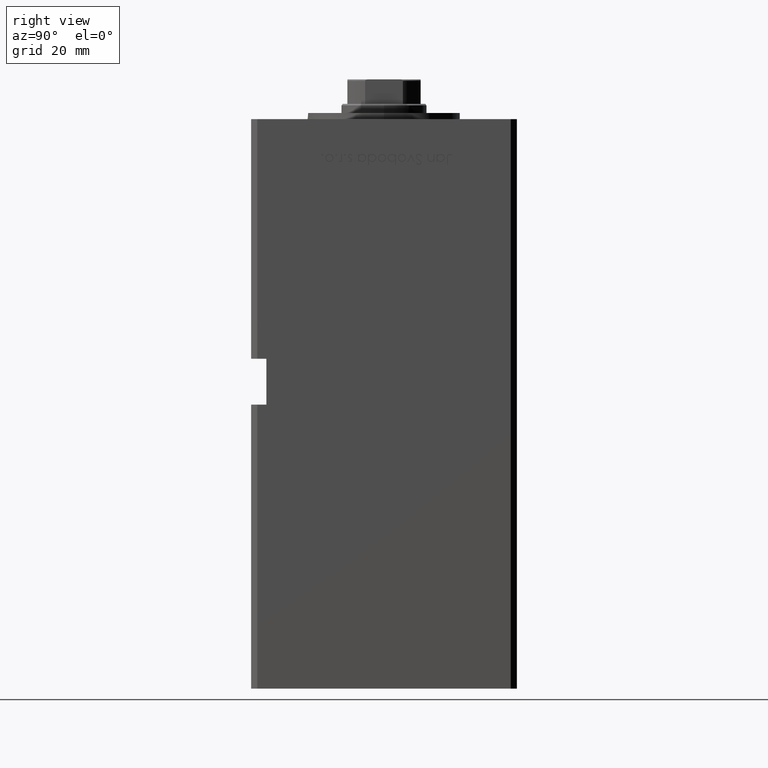
[diagram: clean part render]
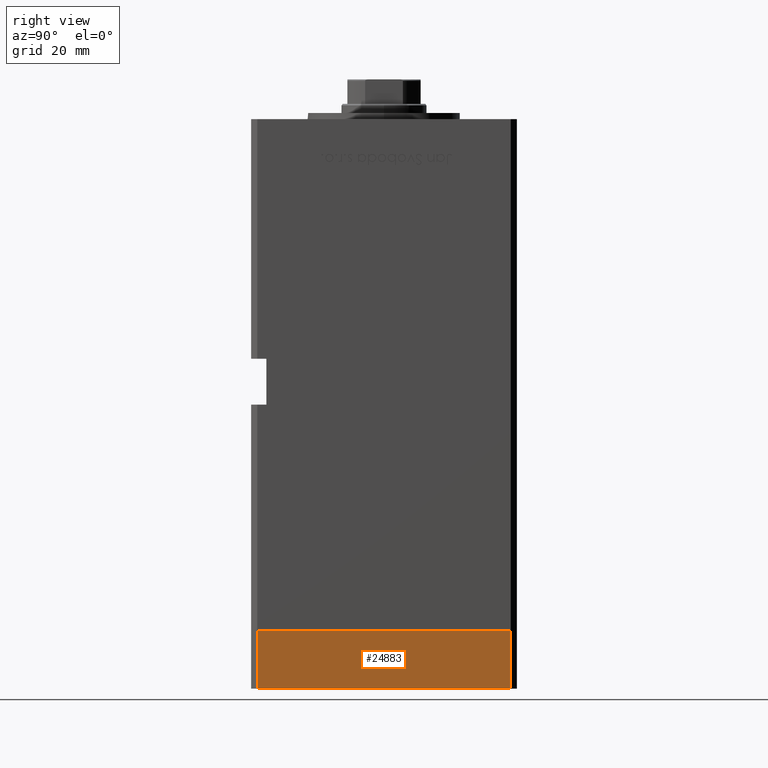
[diagram: same view with one face highlighted and labeled with its STEP entity id]
A machine part, right view. The second image highlights one B-rep face of the part: STEP entity #24883.
In plain terms, the highlighted planar face has unit normal (1, 0, 0).
Its self-contained STEP definition (entity closure, byte-faithful):
#6614 = VECTOR ( 'NONE', #24897, 1000.000000000000000 ) ;
#7896 = CARTESIAN_POINT ( 'NONE',  ( -50.00000000000000711, 41.49999999999995026, -19.00000000000000000 ) ) ;
#9669 = ORIENTED_EDGE ( 'NONE', *, *, #13720, .F. ) ;
#9998 = DIRECTION ( 'NONE',  ( 8.360113137237628665E-17, -1.000000000000000000, 0.000000000000000000 ) ) ;
#10535 = PLANE ( 'NONE',  #20069 ) ;
#11720 = CARTESIAN_POINT ( 'NONE',  ( -50.00000000000000711, 41.49999999999995026, -19.00000000000000000 ) ) ;
#12928 = EDGE_CURVE ( 'NONE', #14904, #48038, #29696, .T. ) ;
#13720 = EDGE_CURVE ( 'NONE', #38157, #26478, #34942, .T. ) ;
#13822 = CARTESIAN_POINT ( 'NONE',  ( -50.00000000000000000, -41.50000000000000000, -19.00000000000000000 ) ) ;
#14904 = VERTEX_POINT ( 'NONE', #13822 ) ;
#15042 = DIRECTION ( 'NONE',  ( 0.000000000000000000, 0.000000000000000000, 1.000000000000000000 ) ) ;
#18588 = FACE_OUTER_BOUND ( 'NONE', #20034, .T. ) ;
#19781 = CARTESIAN_POINT ( 'NONE',  ( -50.00000000000000711, 41.49999999999995026, 0.000000000000000000 ) ) ;
#20034 = EDGE_LOOP ( 'NONE', ( #35250, #9669, #51455, #25861 ) ) ;
#20069 = AXIS2_PLACEMENT_3D ( 'NONE', #43063, #22083, #9998 ) ;
#22083 = DIRECTION ( 'NONE',  ( -1.000000000000000000, -8.360113137237628665E-17, 0.000000000000000000 ) ) ;
#22423 = VECTOR ( 'NONE', #23494, 1000.000000000000000 ) ;
#23494 = DIRECTION ( 'NONE',  ( 0.000000000000000000, 0.000000000000000000, 1.000000000000000000 ) ) ;
#23559 = VECTOR ( 'NONE', #36718, 1000.000000000000000 ) ;
#24883 = ADVANCED_FACE ( 'NONE', ( #18588 ), #10535, .T. ) ;
#24897 = DIRECTION ( 'NONE',  ( 8.360113137237628665E-17, -1.000000000000000000, 0.000000000000000000 ) ) ;
#25861 = ORIENTED_EDGE ( 'NONE', *, *, #12928, .T. ) ;
#26478 = VERTEX_POINT ( 'NONE', #19781 ) ;
#26767 = VECTOR ( 'NONE', #15042, 1000.000000000000000 ) ;
#29696 = LINE ( 'NONE', #46129, #22423 ) ;
#31348 = LINE ( 'NONE', #11720, #23559 ) ;
#34942 = LINE ( 'NONE', #51396, #26767 ) ;
#35250 = ORIENTED_EDGE ( 'NONE', *, *, #38696, .F. ) ;
#36476 = LINE ( 'NONE', #52911, #6614 ) ;
#36718 = DIRECTION ( 'NONE',  ( 8.360113137237628665E-17, -1.000000000000000000, 0.000000000000000000 ) ) ;
#38157 = VERTEX_POINT ( 'NONE', #7896 ) ;
#38696 = EDGE_CURVE ( 'NONE', #26478, #48038, #36476, .T. ) ;
#40410 = CARTESIAN_POINT ( 'NONE',  ( -50.00000000000000000, -41.50000000000000000, 0.000000000000000000 ) ) ;
#41894 = EDGE_CURVE ( 'NONE', #38157, #14904, #31348, .T. ) ;
#43063 = CARTESIAN_POINT ( 'NONE',  ( -50.00000000000000711, 41.49999999999995026, -19.00000000000000000 ) ) ;
#46129 = CARTESIAN_POINT ( 'NONE',  ( -50.00000000000000000, -41.50000000000000000, -19.00000000000000000 ) ) ;
#48038 = VERTEX_POINT ( 'NONE', #40410 ) ;
#51396 = CARTESIAN_POINT ( 'NONE',  ( -50.00000000000000711, 41.49999999999995026, -19.00000000000000000 ) ) ;
#51455 = ORIENTED_EDGE ( 'NONE', *, *, #41894, .T. ) ;
#52911 = CARTESIAN_POINT ( 'NONE',  ( -50.00000000000000711, 41.49999999999995026, 0.000000000000000000 ) ) ;